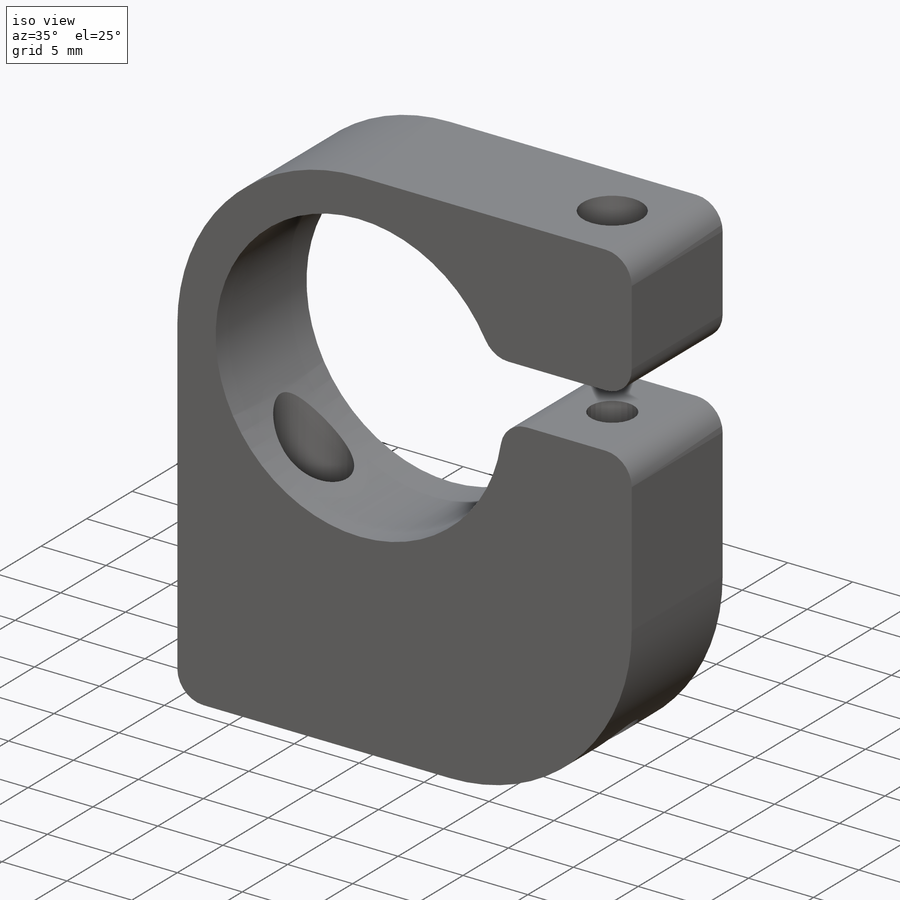
[diagram: iso view]
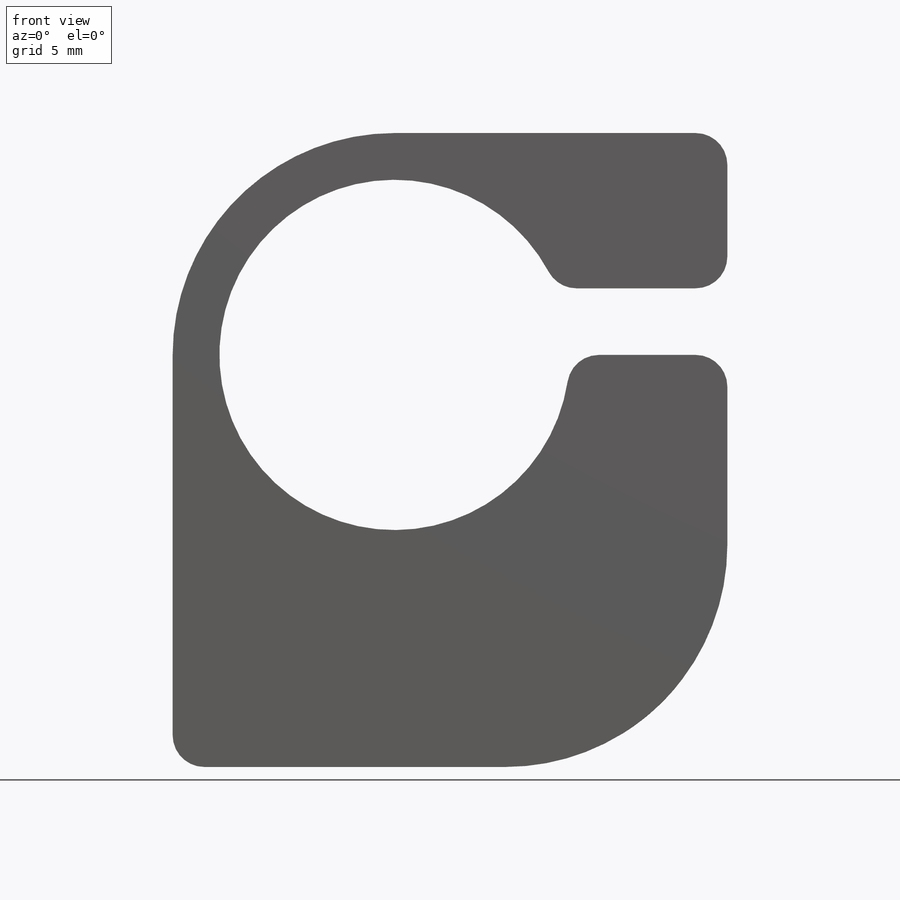
[diagram: front view]
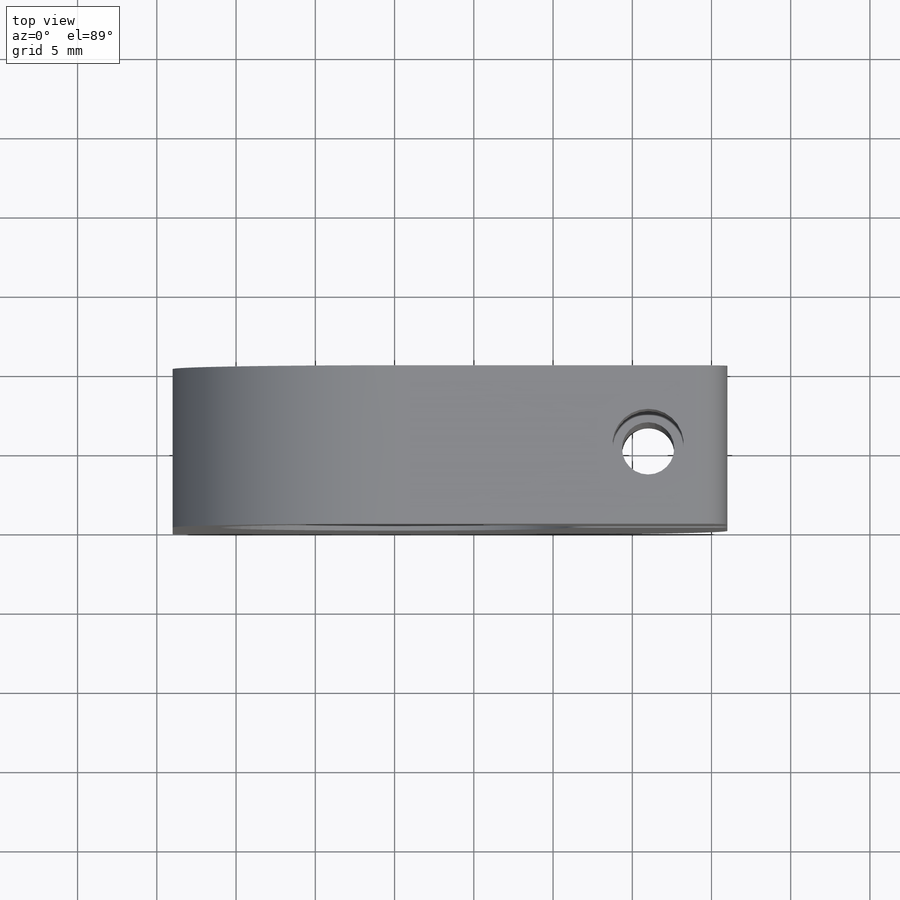
[diagram: top view]
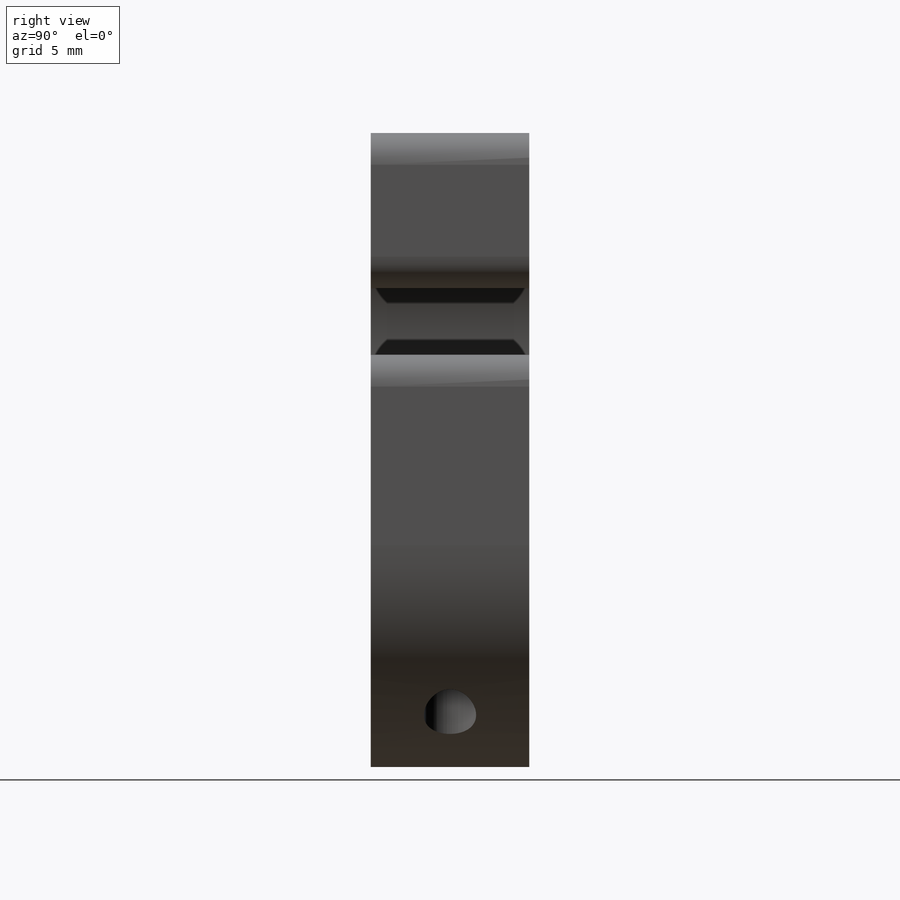
[diagram: right view]
SOLIDWORKS PART (.sldprt)
format: sldprt  version: not decoded by parser v0  size: 424,448 bytes
history: native  units: mm
features: sketch x10, plane x3, hole x3, fillet x3, thread x2, material x1, extrude x1 (+8 scaffold rows collapsed)
feature tree (31):
  scaffold x8  (default folders/planes/origin — collapsed)
  material  "Сплав 2024"
  plane  "Спереди"
  plane  "Сверху"
  plane  "Справа"
  sketch  "Эскиз1"  dims[D1=22.1mm D2=28.0mm D7=28.0mm D3=35.0mm D4=4.2mm D5=9.8mm D6=26.0mm]
  extrude  "Бобышка-Вытянуть1"  Depth=10mm
  sketch  "Эскиз2"  dims[D1=5.0mm]
  hole  "Отверстие с зазором M41"  [1 undecoded]
  sketch  "Эскиз4"
  sketch  "Эскиз3"  dims[hole-wizard template sketch: 60 standard entries collapsed; hole parameters kept: c18.Глубина сквозного отверстия=9.8mm]
  hole  "Отверстие обработанное метчиком M4x0.71"  [1 undecoded]
  sketch  "Эскиз6"
  sketch  "Эскиз5"  dims[hole-wizard template sketch: 60 standard entries collapsed; hole parameters kept: c18.Глубина проходного сверла=26.0mm]
  thread  "Отверстие резьбы1"  Diameter=4mm  [1 undecoded]
  sketch  "Эскиз7"  dims[D1=7.0mm]
  hole  "Отверстие обработанное метчиком 1/4-201"  [1 undecoded]
  sketch  "Эскиз9"
  sketch  "Эскиз8"  dims[hole-wizard template sketch: 60 standard entries collapsed; hole parameters kept: c18.Глубина проходного сверла=17.45mm]
  thread  "Отверстие резьбы2"  Diameter=6.35mm  [1 undecoded]
  fillet  "Скругление1"  Radius=2mm
  fillet  "Скругление2"  Radius=0.5mm
  fillet  "Скругление3"  Radius=0.5mm
  sketch  "Эскиз10"
decode coverage: 12 of 19 modeling features carry decoded parameters
note: ~ marks probable driven/reference dimensions
note: 5 parameter values undecoded
summary: no parameter record found for 3 features
note: suppression state not decoded; provenance and decode notes live in map.json
